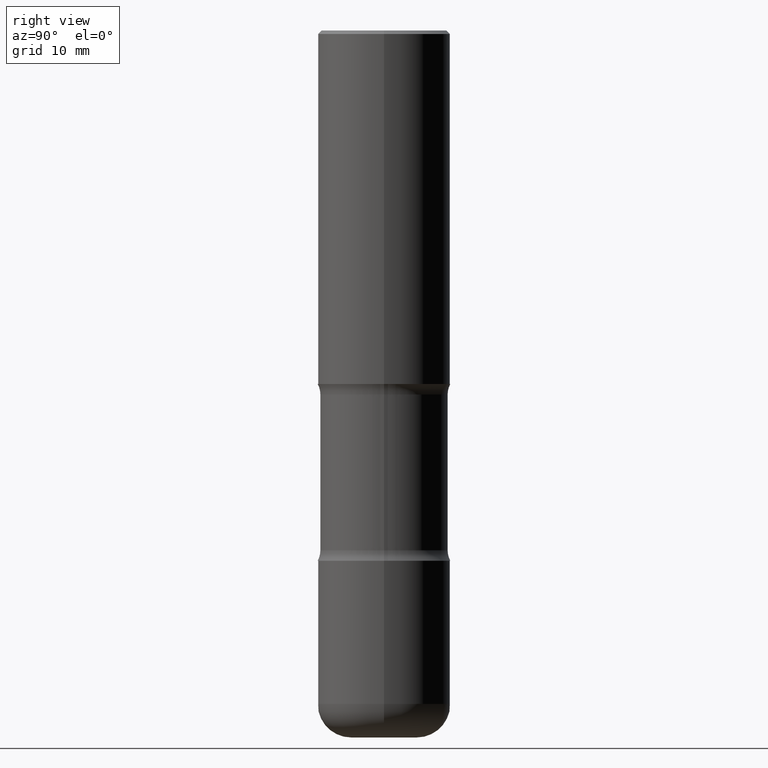
[diagram: clean part render]
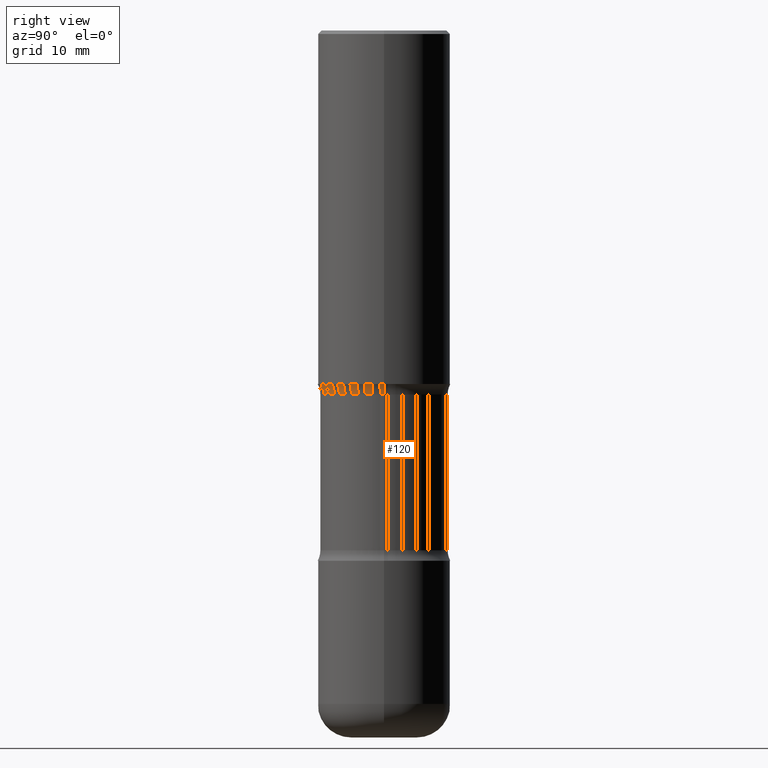
[diagram: same view with one face highlighted and labeled with its STEP entity id]
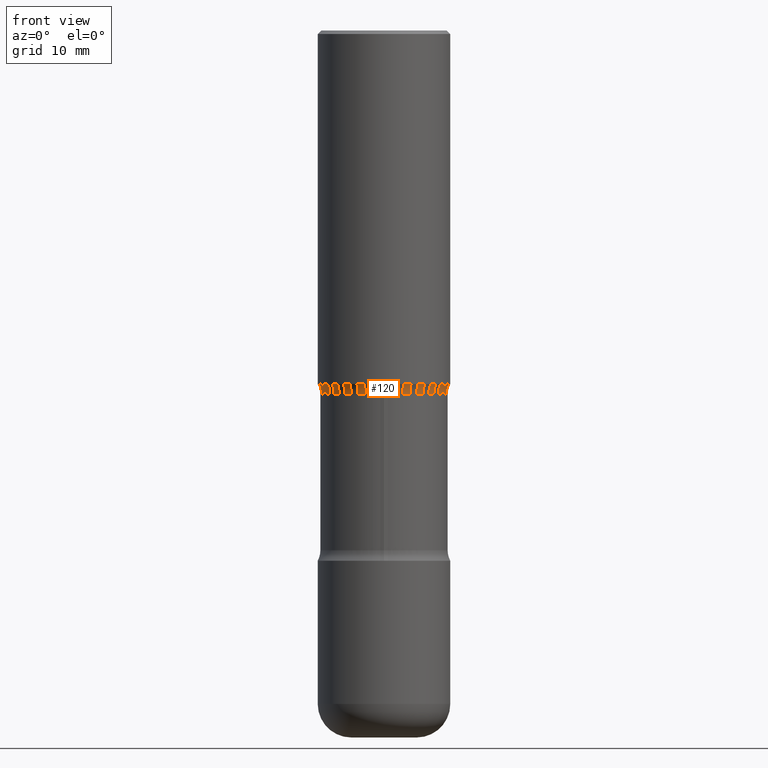
[diagram: same view with one face highlighted and labeled with its STEP entity id]
A machine part, right view. The second image highlights one B-rep face of the part: STEP entity #120.
A second angle (front view) of the same face is appended — the face is thin or edge-on in the first view.
In plain terms, the highlighted toroidal blend (fillet) surface has major radius 12.319 mm and minor (blend) radius 3.175 mm.
Its self-contained STEP definition (entity closure, byte-faithful):
#11 = EDGE_CURVE ( 'NONE', #777, #593, #586, .T. ) ;
#40 = AXIS2_PLACEMENT_3D ( 'NONE', #733, #421, #231 ) ;
#58 = DIRECTION ( 'NONE',  ( -1.000000000000000000, 7.105427357601001859E-15, 0.000000000000000000 ) ) ;
#120 = ADVANCED_FACE ( 'NONE', ( #763 ), #310, .F. ) ;
#127 = CARTESIAN_POINT ( 'NONE',  ( -0.4849999999999998757, -3.744125628289471443E-15, -2.059371710435190295 ) ) ;
#133 = DIRECTION ( 'NONE',  ( 1.000000000000000000, -6.982962677686265133E-15, 4.883557194083112340E-29 ) ) ;
#231 = DIRECTION ( 'NONE',  ( 1.000000000000000000, -6.982962677686267499E-15, 0.000000000000000000 ) ) ;
#247 = DIRECTION ( 'NONE',  ( 7.105427357601001859E-15, 1.000000000000000000, -3.491481338843145583E-15 ) ) ;
#266 = CARTESIAN_POINT ( 'NONE',  ( 0.3599999999999998757, -9.704124460693012319E-15, -2.059371710435190295 ) ) ;
#280 = EDGE_LOOP ( 'NONE', ( #804, #473, #766, #644 ) ) ;
#287 = AXIS2_PLACEMENT_3D ( 'NONE', #778, #661, #502 ) ;
#310 = TOROIDAL_SURFACE ( 'NONE', #341, 0.4849999999999998757, 0.1250000000000000555 ) ;
#311 = CIRCLE ( 'NONE', #418, 0.1250000000000000278 ) ;
#341 = AXIS2_PLACEMENT_3D ( 'NONE', #454, #588, #133 ) ;
#354 = CARTESIAN_POINT ( 'NONE',  ( -0.3599999999999998757, -4.475365733287755283E-15, -2.059371710435190295 ) ) ;
#376 = EDGE_CURVE ( 'NONE', #412, #622, #389, .T. ) ;
#389 = CIRCLE ( 'NONE', #40, 0.3599999999999998757 ) ;
#394 = CARTESIAN_POINT ( 'NONE',  ( 0.4849999999999998757, -1.057699479540379408E-14, -2.059371710435190295 ) ) ;
#405 = AXIS2_PLACEMENT_3D ( 'NONE', #127, #247, #58 ) ;
#412 = VERTEX_POINT ( 'NONE', #354 ) ;
#418 = AXIS2_PLACEMENT_3D ( 'NONE', #394, #701, #532 ) ;
#421 = DIRECTION ( 'NONE',  ( -2.445468806185136597E-29, 3.491481338843145583E-15, 1.000000000000000000 ) ) ;
#454 = CARTESIAN_POINT ( 'NONE',  ( 5.036129278209386779E-29, -7.190257896725955672E-15, -2.059371710435190295 ) ) ;
#473 = ORIENTED_EDGE ( 'NONE', *, *, #620, .T. ) ;
#502 = DIRECTION ( 'NONE',  ( 1.000000000000000000, -6.982962677686264344E-15, 0.000000000000000000 ) ) ;
#511 = CARTESIAN_POINT ( 'NONE',  ( -0.3750000000000001110, -4.318427418585914679E-15, -2.000000000000000000 ) ) ;
#532 = DIRECTION ( 'NONE',  ( 1.000000000000000000, -6.982962677686261189E-15, 0.000000000000000000 ) ) ;
#545 = EDGE_CURVE ( 'NONE', #593, #622, #311, .T. ) ;
#586 = CIRCLE ( 'NONE', #287, 0.3750000000000000555 ) ;
#588 = DIRECTION ( 'NONE',  ( -2.445468806185136597E-29, 3.491481338843145583E-15, 1.000000000000000000 ) ) ;
#593 = VERTEX_POINT ( 'NONE', #697 ) ;
#620 = EDGE_CURVE ( 'NONE', #777, #412, #636, .T. ) ;
#622 = VERTEX_POINT ( 'NONE', #266 ) ;
#636 = CIRCLE ( 'NONE', #405, 0.1250000000000000278 ) ;
#644 = ORIENTED_EDGE ( 'NONE', *, *, #545, .F. ) ;
#661 = DIRECTION ( 'NONE',  ( -2.445468806185136597E-29, 3.491481338843145583E-15, 1.000000000000000000 ) ) ;
#697 = CARTESIAN_POINT ( 'NONE',  ( 0.3750000000000001110, -9.601573681818640393E-15, -2.000000000000000000 ) ) ;
#701 = DIRECTION ( 'NONE',  ( -6.982962677686266711E-15, -1.000000000000000000, 3.491481338843145583E-15 ) ) ;
#733 = CARTESIAN_POINT ( 'NONE',  ( 5.036129278209386779E-29, -7.190257896725955672E-15, -2.059371710435190295 ) ) ;
#763 = FACE_OUTER_BOUND ( 'NONE', #280, .T. ) ;
#766 = ORIENTED_EDGE ( 'NONE', *, *, #376, .T. ) ;
#777 = VERTEX_POINT ( 'NONE', #511 ) ;
#778 = CARTESIAN_POINT ( 'NONE',  ( 4.890937612370273194E-29, -6.982962677686291165E-15, -2.000000000000000000 ) ) ;
#804 = ORIENTED_EDGE ( 'NONE', *, *, #11, .F. ) ;